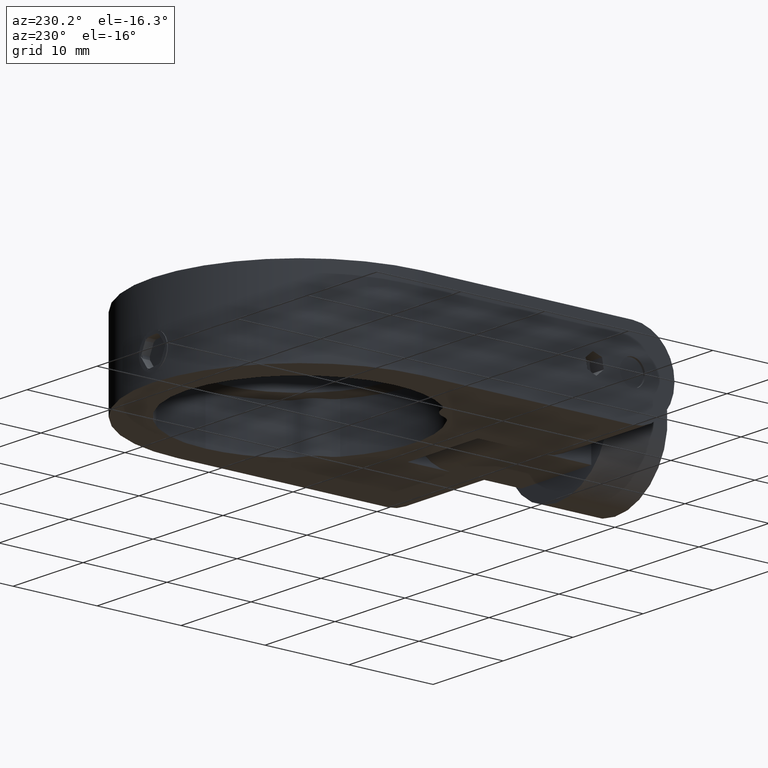
[diagram: clean part render]
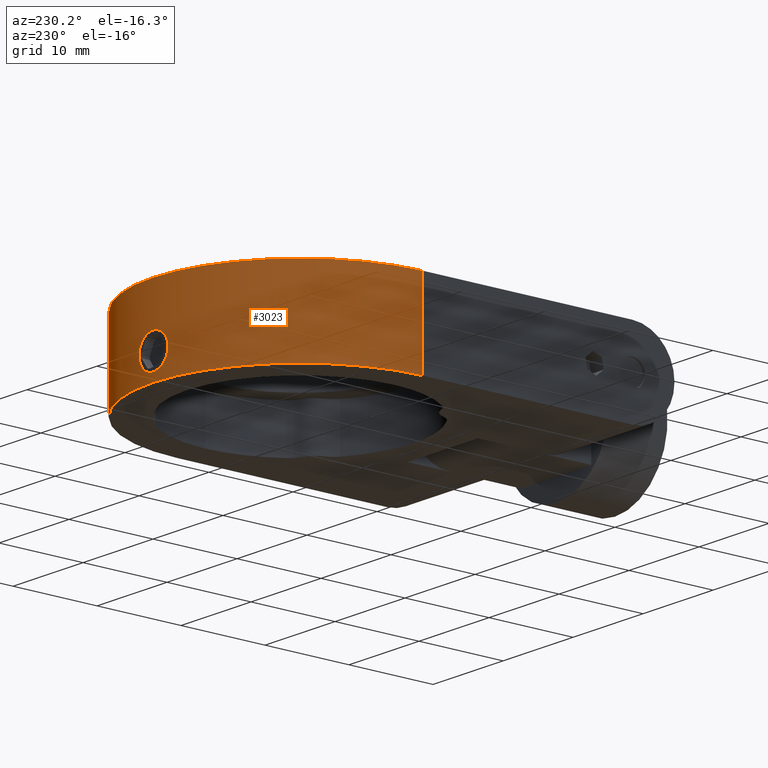
[diagram: same view with one face highlighted and labeled with its STEP entity id]
A machine part, auxiliary view. The second image highlights one B-rep face of the part: STEP entity #3023.
In plain terms, the highlighted cylindrical surface (partial cylindrical patch) has radius 17.5 mm, axis along (0, 0, 1).
Its self-contained STEP definition (entity closure, byte-faithful):
#16 = VERTEX_POINT ( 'NONE', #1343 ) ;
#51 = LINE ( 'NONE', #3466, #2951 ) ;
#57 = CIRCLE ( 'NONE', #1390, 17.50000000000000000 ) ;
#82 = EDGE_CURVE ( 'NONE', #108, #2785, #1102, .T. ) ;
#108 = VERTEX_POINT ( 'NONE', #733 ) ;
#116 = CYLINDRICAL_SURFACE ( 'NONE', #437, 17.50000000000000000 ) ;
#162 = CARTESIAN_POINT ( 'NONE',  ( -2.996752460788856200E-015, 37.50000000000009900, -4.999999999999980500 ) ) ;
#171 = CARTESIAN_POINT ( 'NONE',  ( 1.565948766116068900, 54.92984588805191500, -1.468963886583071400 ) ) ;
#267 = CARTESIAN_POINT ( 'NONE',  ( -1.015503353934396900, 54.97117544664313000, -3.318160825341995400 ) ) ;
#279 = CARTESIAN_POINT ( 'NONE',  ( -1.313145395344434800, 54.95076628803796800, -3.004869102334127200 ) ) ;
#419 = CARTESIAN_POINT ( 'NONE',  ( 0.7314253992292828500, 54.98499405015223100, -0.5170240010140496600 ) ) ;
#437 = AXIS2_PLACEMENT_3D ( 'NONE', #162, #2245, #769 ) ;
#449 = CARTESIAN_POINT ( 'NONE',  ( 0.2171304411272194600, 54.99897275002042800, -0.3607961997257604400 ) ) ;
#553 = CARTESIAN_POINT ( 'NONE',  ( -1.243558615792936400, 54.95592640355702900, -3.089787008968583900 ) ) ;
#562 = CARTESIAN_POINT ( 'NONE',  ( -1.650083971521573400, 54.92203268548563200, -2.107696236851992900 ) ) ;
#602 = CARTESIAN_POINT ( 'NONE',  ( -1.242024176549120000, 54.95603601004186300, -0.9084676568398099000 ) ) ;
#711 = CARTESIAN_POINT ( 'NONE',  ( -5.705801625320627200E-015, 55.00000000000010700, -3.649999999999972800 ) ) ;
#727 = CARTESIAN_POINT ( 'NONE',  ( 0.1077170777941826300, 55.00000000000010700, -0.3499999999999871000 ) ) ;
#733 = CARTESIAN_POINT ( 'NONE',  ( -17.50000000000000400, 37.50000000000009900, 5.000000000000022200 ) ) ;
#764 = CARTESIAN_POINT ( 'NONE',  ( 0.8279081968503302400, 54.98063414402612600, -0.5687009139404227700 ) ) ;
#769 = DIRECTION ( 'NONE',  ( 1.000000000000000000, 0.0000000000000000000, -9.912705577010326800E-017 ) ) ;
#779 = CARTESIAN_POINT ( 'NONE',  ( 1.089897451531314500, 54.96619828037505300, -0.7564196335650722500 ) ) ;
#837 = CARTESIAN_POINT ( 'NONE',  ( 17.49999999999999600, 37.50000000000009900, 5.000000000000018700 ) ) ;
#851 = ORIENTED_EDGE ( 'NONE', *, *, #3597, .F. ) ;
#900 = CARTESIAN_POINT ( 'NONE',  ( -1.639141912024452600, 54.92307838616447000, -1.782565714130186500 ) ) ;
#910 = FACE_OUTER_BOUND ( 'NONE', #3814, .T. ) ;
#960 = CARTESIAN_POINT ( 'NONE',  ( -5.705801625320627200E-015, 55.00000000000010700, -3.649999999999972800 ) ) ;
#984 = CARTESIAN_POINT ( 'NONE',  ( 0.4273161170325204300, 54.99510025909933800, -3.597331965297832400 ) ) ;
#1004 = FACE_BOUND ( 'NONE', #1879, .T. ) ;
#1046 = CARTESIAN_POINT ( 'NONE',  ( 0.8267094926511366900, 54.98069257931970100, -3.432018400474889900 ) ) ;
#1063 = CARTESIAN_POINT ( 'NONE',  ( 1.090893303509632700, 54.96613186576865900, -3.242588299891062700 ) ) ;
#1102 = CIRCLE ( 'NONE', #3384, 17.50000000000000000 ) ;
#1271 = ORIENTED_EDGE ( 'NONE', *, *, #3747, .T. ) ;
#1294 = CARTESIAN_POINT ( 'NONE',  ( 0.7319538721802679700, 54.98497175480212500, -3.482713933314834700 ) ) ;
#1317 = CARTESIAN_POINT ( 'NONE',  ( 1.431577407516354500, 54.94144990789587300, -1.172570826667559200 ) ) ;
#1343 = CARTESIAN_POINT ( 'NONE',  ( -3.527898732679044000E-015, 55.00000000000010700, -0.3499999999999872100 ) ) ;
#1355 = CARTESIAN_POINT ( 'NONE',  ( 1.606555768380448600, 54.92629628530843200, -2.433210753019798800 ) ) ;
#1368 = CARTESIAN_POINT ( 'NONE',  ( 1.319065241507898900, 54.95088275981708400, -3.014328555902493700 ) ) ;
#1378 = DIRECTION ( 'NONE',  ( 1.057139645054936500E-016, 1.718301073974566900E-032, 1.000000000000000000 ) ) ;
#1390 = AXIS2_PLACEMENT_3D ( 'NONE', #1555, #1872, #1848 ) ;
#1425 = EDGE_CURVE ( 'NONE', #2279, #108, #51, .T. ) ;
#1444 = CARTESIAN_POINT ( 'NONE',  ( -1.482283146985450500, 54.93716057973214400, -1.267184722697456900 ) ) ;
#1494 = CARTESIAN_POINT ( 'NONE',  ( -1.483306548592902700, 54.93707329836158900, -2.730756370299275200 ) ) ;
#1555 = CARTESIAN_POINT ( 'NONE',  ( -2.996752460788856200E-015, 37.50000000000009900, -4.999999999999980500 ) ) ;
#1626 = CARTESIAN_POINT ( 'NONE',  ( 1.006570744557258000, 54.97125689227613100, -0.6881827900319391600 ) ) ;
#1669 = CARTESIAN_POINT ( 'NONE',  ( 1.649921927317597600, 54.92204803230358600, -2.215967967100893600 ) ) ;
#1684 = ORIENTED_EDGE ( 'NONE', *, *, #3838, .T. ) ;
#1736 = CARTESIAN_POINT ( 'NONE',  ( -1.565211479505585600, 54.92991237601686500, -1.466807180366216800 ) ) ;
#1748 = CARTESIAN_POINT ( 'NONE',  ( -0.2153838398453226400, 55.00000000000008500, -0.3499999999999871000 ) ) ;
#1781 = CARTESIAN_POINT ( 'NONE',  ( -1.649915037179527700, 54.92204868485021800, -1.889745918019445400 ) ) ;
#1797 = CARTESIAN_POINT ( 'NONE',  ( -17.50000000000000400, 37.50000000000009900, -4.999999999999978700 ) ) ;
#1848 = DIRECTION ( 'NONE',  ( -1.000000000000000000, 0.0000000000000000000, 9.912705577010326800E-017 ) ) ;
#1872 = DIRECTION ( 'NONE',  ( -1.057139645054936500E-016, -1.718301073974566900E-032, -1.000000000000000000 ) ) ;
#1879 = EDGE_LOOP ( 'NONE', ( #1271, #1684 ) ) ;
#1896 = CARTESIAN_POINT ( 'NONE',  ( 1.650038874172630600, 54.92203695654605200, -1.892911970868001800 ) ) ;
#1913 = CARTESIAN_POINT ( 'NONE',  ( -1.939612815733919400E-015, 37.50000000000009900, 5.000000000000020400 ) ) ;
#1937 = CARTESIAN_POINT ( 'NONE',  ( 1.639293849687780500, 54.92306413595989100, -1.783524912386195800 ) ) ;
#1948 = CARTESIAN_POINT ( 'NONE',  ( 1.483241079144064200, 54.93707885858408000, -1.269116429933633500 ) ) ;
#1953 = DIRECTION ( 'NONE',  ( -1.000000000000000000, 0.0000000000000000000, 9.912705577010326800E-017 ) ) ;
#1977 = VECTOR ( 'NONE', #3127, 1000.000000000000000 ) ;
#2031 = CARTESIAN_POINT ( 'NONE',  ( -0.4348180556215017800, 54.99572395992200300, -3.606115194177681000 ) ) ;
#2050 = CARTESIAN_POINT ( 'NONE',  ( -1.639445297957021100, 54.92304965741868700, -2.215128590417121000 ) ) ;
#2076 = CARTESIAN_POINT ( 'NONE',  ( -1.431557207365659300, 54.94145225371734400, -1.172494226316109800 ) ) ;
#2137 = VERTEX_POINT ( 'NONE', #711 ) ;
#2204 = VERTEX_POINT ( 'NONE', #3773 ) ;
#2207 = CARTESIAN_POINT ( 'NONE',  ( 0.4286877478790487900, 54.99506844082753100, -0.4030148585174638300 ) ) ;
#2240 = CARTESIAN_POINT ( 'NONE',  ( 1.312133538753544000, 54.95084222436929600, -0.9938397309220753400 ) ) ;
#2244 = DIRECTION ( 'NONE',  ( -1.057139645054936500E-016, -1.718301073974566900E-032, -1.000000000000000000 ) ) ;
#2245 = DIRECTION ( 'NONE',  ( 1.057139645054936500E-016, 1.718301073974566900E-032, 1.000000000000000000 ) ) ;
#2279 = VERTEX_POINT ( 'NONE', #1797 ) ;
#2333 = CARTESIAN_POINT ( 'NONE',  ( -0.2181180835376129200, 55.00000000000011400, -3.649999999999972800 ) ) ;
#2344 = ORIENTED_EDGE ( 'NONE', *, *, #1425, .T. ) ;
#2354 = CARTESIAN_POINT ( 'NONE',  ( -1.597054405986774200, 54.92698665525697500, -1.571653060306094300 ) ) ;
#2355 = EDGE_CURVE ( 'NONE', #2279, #2204, #57, .T. ) ;
#2519 = CARTESIAN_POINT ( 'NONE',  ( 1.243940680580507300, 54.95590359756343400, -0.9105138064969429100 ) ) ;
#2594 = B_SPLINE_CURVE_WITH_KNOTS ( 'NONE', 3,
 ( #960, #3659, #2733, #984, #2748, #1294, #1046, #3754, #1063, #1368, #3453, #1355, #1669, #1896, #1937, #2787, #171, #1948, #1317, #2240, #2519, #779, #1626, #764, #419, #3089, #2207, #449, #727, #2776 ),
 .UNSPECIFIED., .F., .F.,
 ( 4, 2, 2, 2, 2, 2, 2, 2, 2, 2, 2, 2, 2, 2, 4 ),
 ( 7.063985980601647900E-021, 0.0003225948168731046900, 0.0006451896337462093800, 0.0009677844506193140700, 0.001290379267492418500, 0.001935568901238626000, 0.002580758534984833200, 0.002903353351857936500, 0.003225948168731039300, 0.003548542985604142600, 0.003871137802477245400, 0.004193732619350348300, 0.004516327436223451100, 0.004838922253096554800, 0.005161517069969656800 ),
 .UNSPECIFIED. ) ;
#2630 = CARTESIAN_POINT ( 'NONE',  ( -1.013720085198445400, 54.97128044949472100, -0.6804776492782107500 ) ) ;
#2642 = CARTESIAN_POINT ( 'NONE',  ( -0.4325380471093160900, 54.99578216589536300, -0.3932642807109867900 ) ) ;
#2654 = CARTESIAN_POINT ( 'NONE',  ( -1.597660903955364000, 54.92693087970004500, -2.426076086375146700 ) ) ;
#2733 = CARTESIAN_POINT ( 'NONE',  ( 0.2163338902172029000, 54.99898087854708000, -3.639288906563292500 ) ) ;
#2748 = CARTESIAN_POINT ( 'NONE',  ( 0.5321469564195295800, 54.99219292581695100, -3.565572322129854800 ) ) ;
#2776 = CARTESIAN_POINT ( 'NONE',  ( -3.527898732679044000E-015, 55.00000000000010700, -0.3499999999999872100 ) ) ;
#2785 = VERTEX_POINT ( 'NONE', #837 ) ;
#2787 = CARTESIAN_POINT ( 'NONE',  ( 1.597133255532377600, 54.92697947366291100, -1.571851482246936900 ) ) ;
#2931 = CARTESIAN_POINT ( 'NONE',  ( -1.432690255232459000, 54.94135870572011300, -2.825537022005705900 ) ) ;
#2951 = VECTOR ( 'NONE', #1378, 1000.000000000000000 ) ;
#2953 = CARTESIAN_POINT ( 'NONE',  ( -1.566021650540456700, 54.92983934864496800, -2.530828955380273200 ) ) ;
#3023 = ADVANCED_FACE ( 'NONE', ( #1004, #910 ), #116, .T. ) ;
#3070 = ORIENTED_EDGE ( 'NONE', *, *, #2355, .F. ) ;
#3089 = CARTESIAN_POINT ( 'NONE',  ( 0.5315551709051781200, 54.99221109948024400, -0.4342254221983087300 ) ) ;
#3127 = DIRECTION ( 'NONE',  ( 1.057139645054936500E-016, 1.718301073974566900E-032, 1.000000000000000000 ) ) ;
#3225 = CARTESIAN_POINT ( 'NONE',  ( -5.705801625320627200E-015, 55.00000000000010700, -3.649999999999972800 ) ) ;
#3245 = CARTESIAN_POINT ( 'NONE',  ( -1.311714603639930300, 54.95087440660954300, -0.9932593968461965700 ) ) ;
#3273 = CARTESIAN_POINT ( 'NONE',  ( -3.527898732679044000E-015, 55.00000000000010700, -0.3499999999999872100 ) ) ;
#3314 = ORIENTED_EDGE ( 'NONE', *, *, #82, .T. ) ;
#3384 = AXIS2_PLACEMENT_3D ( 'NONE', #1913, #2244, #1953 ) ;
#3408 = CARTESIAN_POINT ( 'NONE',  ( 17.49999999999999600, 37.50000000000009900, -4.999999999999982200 ) ) ;
#3453 = CARTESIAN_POINT ( 'NONE',  ( 1.441972753288453400, 54.94068628922166700, -2.830305710098502300 ) ) ;
#3466 = CARTESIAN_POINT ( 'NONE',  ( -17.50000000000000400, 37.50000000000009900, -4.999999999999978700 ) ) ;
#3475 = LINE ( 'NONE', #3408, #1977 ) ;
#3574 = CARTESIAN_POINT ( 'NONE',  ( -0.8296849130872163700, 54.98145033181329200, -0.5576714040026185000 ) ) ;
#3597 = EDGE_CURVE ( 'NONE', #2204, #2785, #3475, .T. ) ;
#3652 = B_SPLINE_CURVE_WITH_KNOTS ( 'NONE', 3,
 ( #3273, #1748, #2642, #3574, #2630, #602, #3245, #2076, #1444, #1736, #2354, #900, #1781, #562, #2050, #2654, #2953, #1494, #2931, #279, #553, #267, #3834, #2031, #2333, #3225 ),
 .UNSPECIFIED., .F., .F.,
 ( 4, 2, 2, 2, 2, 2, 2, 2, 2, 2, 2, 2, 4 ),
 ( 0.005161517069969656800, 0.005806556016394518600, 0.006451594962819381200, 0.006774114436031812600, 0.007096633909244243000, 0.007419153382456673500, 0.007741672855669104800, 0.008064192328881536100, 0.008386711802093967500, 0.008709231275306400500, 0.009031750748518831800, 0.009676789694943692700, 0.01032182864136855500 ),
 .UNSPECIFIED. ) ;
#3659 = CARTESIAN_POINT ( 'NONE',  ( 0.1090845190131780100, 55.00000000000012100, -3.649999999999973300 ) ) ;
#3747 = EDGE_CURVE ( 'NONE', #2137, #16, #2594, .T. ) ;
#3754 = CARTESIAN_POINT ( 'NONE',  ( 1.006036376957947500, 54.97128937560592000, -3.312256107920819900 ) ) ;
#3773 = CARTESIAN_POINT ( 'NONE',  ( 17.49999999999999600, 37.50000000000009900, -4.999999999999982200 ) ) ;
#3814 = EDGE_LOOP ( 'NONE', ( #3314, #851, #3070, #2344 ) ) ;
#3834 = CARTESIAN_POINT ( 'NONE',  ( -0.8316656489510112500, 54.98135452050667000, -3.441181809078153200 ) ) ;
#3838 = EDGE_CURVE ( 'NONE', #16, #2137, #3652, .T. ) ;